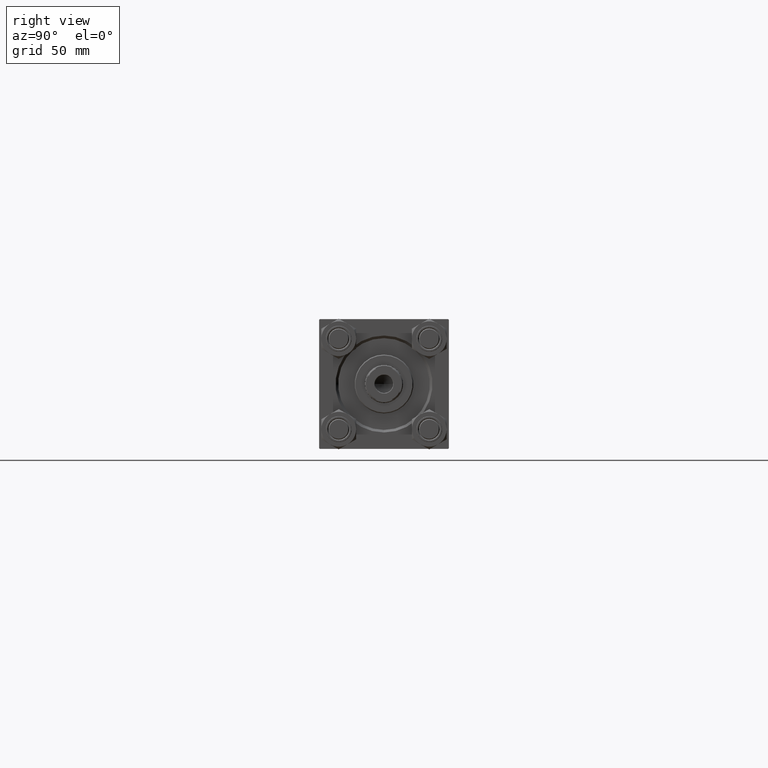
[diagram: clean part render]
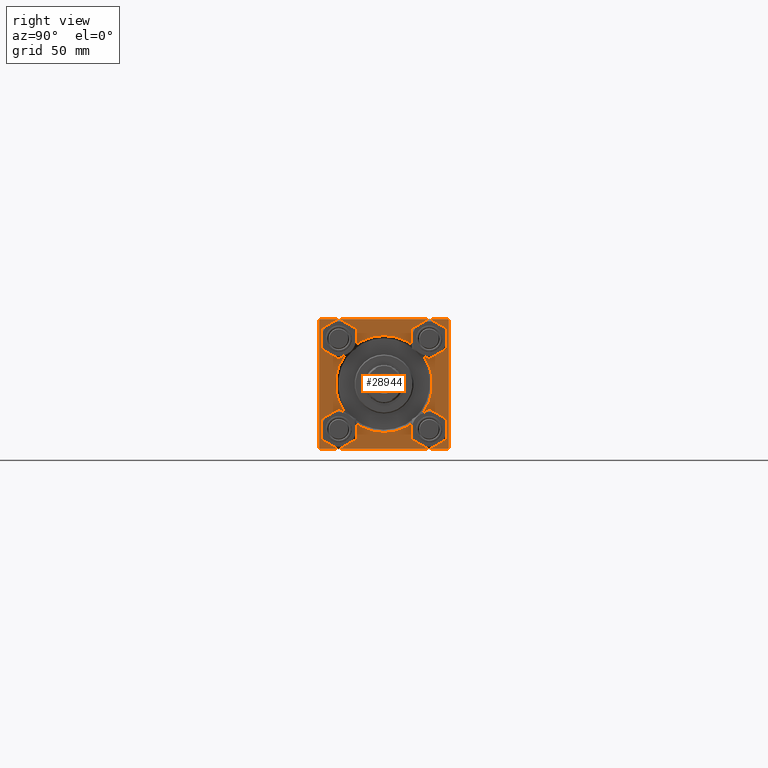
[diagram: same view with one face highlighted and labeled with its STEP entity id]
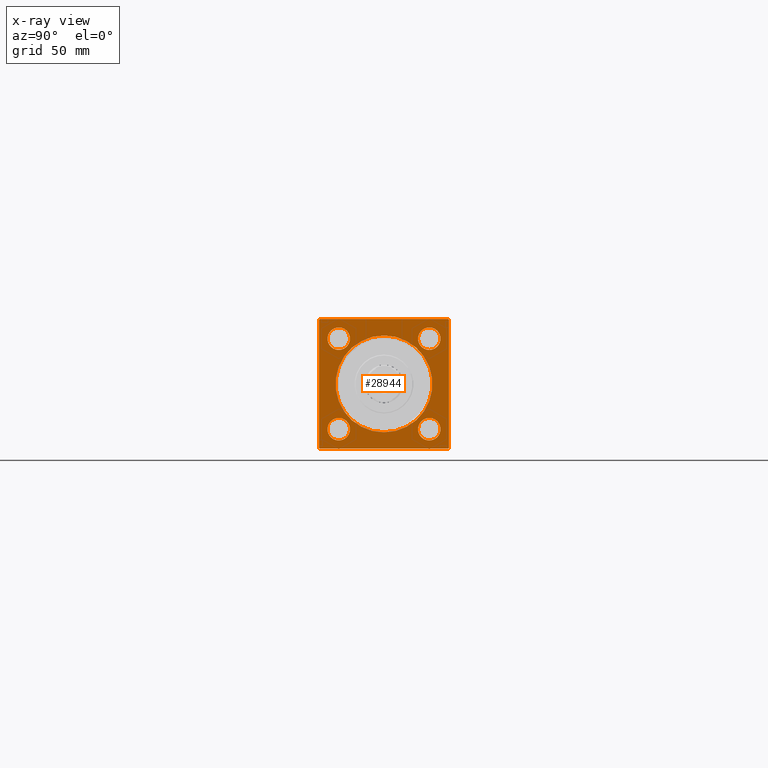
[diagram: x-ray of the same camera — body ghosted, the highlighted face saturated]
A machine part, right view. The second image highlights one B-rep face of the part: STEP entity #28944.
The next image is the same camera in x-ray: the body ghosted, the highlighted face saturated — about 0% of this face is hidden behind the body in this view.
In plain terms, the highlighted planar face has unit normal (-1, 0, 0).
Its self-contained STEP definition (entity closure, byte-faithful):
#395 = EDGE_CURVE ( 'NONE', #35150, #3053, #11239, .T. ) ;
#785 = CARTESIAN_POINT ( 'NONE',  ( 337.9999999999999432, -37.50000000000000711, -37.00000000000000711 ) ) ;
#971 = DIRECTION ( 'NONE',  ( -1.000000000000000000, -0.000000000000000000, 0.000000000000000000 ) ) ;
#1113 = FACE_OUTER_BOUND ( 'NONE', #42255, .T. ) ;
#1223 = ORIENTED_EDGE ( 'NONE', *, *, #19247, .T. ) ;
#1498 = AXIS2_PLACEMENT_3D ( 'NONE', #3431, #23285, #18760 ) ;
#1632 = VERTEX_POINT ( 'NONE', #37263 ) ;
#2069 = CARTESIAN_POINT ( 'NONE',  ( 337.9999999999999432, -26.14999999999999147, 26.15000000000000924 ) ) ;
#2175 = VERTEX_POINT ( 'NONE', #43338 ) ;
#2333 = CARTESIAN_POINT ( 'NONE',  ( 337.9999999999999432, -26.14999999999999147, -26.15000000000000924 ) ) ;
#2349 = ORIENTED_EDGE ( 'NONE', *, *, #37977, .T. ) ;
#2572 = AXIS2_PLACEMENT_3D ( 'NONE', #26548, #22770, #18987 ) ;
#2605 = DIRECTION ( 'NONE',  ( 0.000000000000000000, 0.000000000000000000, 1.000000000000000000 ) ) ;
#3053 = VERTEX_POINT ( 'NONE', #32508 ) ;
#3362 = CARTESIAN_POINT ( 'NONE',  ( 337.9999999999999432, 36.99999999999994316, -37.50000000000000000 ) ) ;
#3431 = CARTESIAN_POINT ( 'NONE',  ( 337.9999999999999432, 26.14999999999999858, -26.15000000000000213 ) ) ;
#4290 = CARTESIAN_POINT ( 'NONE',  ( 337.9999999999999432, 26.14999999999999858, 32.65000000000012648 ) ) ;
#4418 = VERTEX_POINT ( 'NONE', #10835 ) ;
#4836 = CARTESIAN_POINT ( 'NONE',  ( 337.9999999999999432, 26.14999999999999858, -19.64999999999988844 ) ) ;
#4893 = FACE_BOUND ( 'NONE', #20786, .T. ) ;
#5463 = ORIENTED_EDGE ( 'NONE', *, *, #395, .F. ) ;
#6791 = CIRCLE ( 'NONE', #48561, 6.500000000000057732 ) ;
#7045 = LINE ( 'NONE', #41229, #45733 ) ;
#7159 = LINE ( 'NONE', #41835, #30085 ) ;
#7407 = DIRECTION ( 'NONE',  ( 0.000000000000000000, -0.7071067811865474617, 0.7071067811865474617 ) ) ;
#7972 = DIRECTION ( 'NONE',  ( -0.000000000000000000, -0.7071067811865474617, -0.7071067811865474617 ) ) ;
#8265 = CIRCLE ( 'NONE', #15461, 28.00000000000013500 ) ;
#8423 = VERTEX_POINT ( 'NONE', #26265 ) ;
#8435 = FACE_BOUND ( 'NONE', #23462, .T. ) ;
#8733 = AXIS2_PLACEMENT_3D ( 'NONE', #44367, #37045, #2605 ) ;
#9155 = CARTESIAN_POINT ( 'NONE',  ( 337.9999999999999432, 0.000000000000000000, 0.000000000000000000 ) ) ;
#10048 = EDGE_CURVE ( 'NONE', #35150, #24673, #7045, .T. ) ;
#10343 = CARTESIAN_POINT ( 'NONE',  ( 337.9999999999999432, -36.99999999999988631, 37.49999999999997868 ) ) ;
#10685 = CIRCLE ( 'NONE', #29126, 6.500000000000113687 ) ;
#10835 = CARTESIAN_POINT ( 'NONE',  ( 337.9999999999999432, 0.000000000000000000, -28.00000000000013500 ) ) ;
#11239 = LINE ( 'NONE', #25810, #11854 ) ;
#11468 = DIRECTION ( 'NONE',  ( 0.000000000000000000, 0.000000000000000000, 1.000000000000000000 ) ) ;
#11516 = ORIENTED_EDGE ( 'NONE', *, *, #15321, .T. ) ;
#11538 = CARTESIAN_POINT ( 'NONE',  ( 337.9999999999999432, -26.14999999999999147, -32.65000000000012648 ) ) ;
#11854 = VECTOR ( 'NONE', #29334, 1000.000000000000000 ) ;
#12006 = DIRECTION ( 'NONE',  ( 0.000000000000000000, 0.000000000000000000, -1.000000000000000000 ) ) ;
#12146 = EDGE_LOOP ( 'NONE', ( #48812, #29863 ) ) ;
#12461 = DIRECTION ( 'NONE',  ( 0.000000000000000000, 0.000000000000000000, 1.000000000000000000 ) ) ;
#12783 = VERTEX_POINT ( 'NONE', #4290 ) ;
#12886 = ORIENTED_EDGE ( 'NONE', *, *, #47121, .T. ) ;
#12925 = FACE_BOUND ( 'NONE', #47344, .T. ) ;
#12932 = ORIENTED_EDGE ( 'NONE', *, *, #15675, .T. ) ;
#13030 = CARTESIAN_POINT ( 'NONE',  ( 337.9999999999999432, 0.000000000000000000, 0.000000000000000000 ) ) ;
#13179 = CARTESIAN_POINT ( 'NONE',  ( 337.9999999999999432, 37.50000000000000000, 37.49999999999999289 ) ) ;
#13762 = CIRCLE ( 'NONE', #41879, 6.500000000000113687 ) ;
#15321 = EDGE_CURVE ( 'NONE', #37296, #12783, #22607, .T. ) ;
#15461 = AXIS2_PLACEMENT_3D ( 'NONE', #13030, #971, #36393 ) ;
#15525 = CARTESIAN_POINT ( 'NONE',  ( 337.9999999999999432, 37.50000000000000000, 37.49999999999999289 ) ) ;
#15675 = EDGE_CURVE ( 'NONE', #32119, #18323, #13762, .T. ) ;
#15766 = CARTESIAN_POINT ( 'NONE',  ( 337.9999999999999432, 26.14999999999999858, -26.15000000000000213 ) ) ;
#15950 = ORIENTED_EDGE ( 'NONE', *, *, #46265, .F. ) ;
#15973 = DIRECTION ( 'NONE',  ( 0.000000000000000000, 0.000000000000000000, 1.000000000000000000 ) ) ;
#16006 = CARTESIAN_POINT ( 'NONE',  ( 337.9999999999999432, -37.50000000000000000, 36.99999999999986500 ) ) ;
#16839 = CARTESIAN_POINT ( 'NONE',  ( 337.9999999999999432, -37.50000000000000000, 37.49999999999997868 ) ) ;
#17805 = EDGE_CURVE ( 'NONE', #2175, #31039, #21703, .T. ) ;
#17836 = CIRCLE ( 'NONE', #2572, 28.00000000000013500 ) ;
#17838 = VERTEX_POINT ( 'NONE', #36045 ) ;
#18323 = VERTEX_POINT ( 'NONE', #4836 ) ;
#18760 = DIRECTION ( 'NONE',  ( 0.000000000000000000, 0.000000000000000000, 1.000000000000000000 ) ) ;
#18987 = DIRECTION ( 'NONE',  ( 0.000000000000000000, 0.000000000000000000, 1.000000000000000000 ) ) ;
#19247 = EDGE_CURVE ( 'NONE', #46620, #17838, #10685, .T. ) ;
#20114 = CARTESIAN_POINT ( 'NONE',  ( 337.9999999999999432, 26.14999999999999858, -32.65000000000011937 ) ) ;
#20217 = FACE_BOUND ( 'NONE', #12146, .T. ) ;
#20786 = EDGE_LOOP ( 'NONE', ( #1223, #27367 ) ) ;
#21253 = CARTESIAN_POINT ( 'NONE',  ( 337.9999999999999432, -36.99999999999995737, -37.50000000000000000 ) ) ;
#21400 = ORIENTED_EDGE ( 'NONE', *, *, #44685, .T. ) ;
#21586 = VERTEX_POINT ( 'NONE', #32433 ) ;
#21703 = LINE ( 'NONE', #13179, #24285 ) ;
#21929 = EDGE_CURVE ( 'NONE', #4418, #21586, #8265, .T. ) ;
#22607 = CIRCLE ( 'NONE', #29020, 6.500000000000113687 ) ;
#22770 = DIRECTION ( 'NONE',  ( -1.000000000000000000, -0.000000000000000000, 0.000000000000000000 ) ) ;
#23195 = CIRCLE ( 'NONE', #8733, 6.500000000000113687 ) ;
#23285 = DIRECTION ( 'NONE',  ( -1.000000000000000000, -0.000000000000000000, 0.000000000000000000 ) ) ;
#23462 = EDGE_LOOP ( 'NONE', ( #11516, #12886 ) ) ;
#23769 = VECTOR ( 'NONE', #43495, 1000.000000000000000 ) ;
#23804 = LINE ( 'NONE', #15525, #38414 ) ;
#24285 = VECTOR ( 'NONE', #32766, 1000.000000000000000 ) ;
#24673 = VERTEX_POINT ( 'NONE', #25030 ) ;
#25030 = CARTESIAN_POINT ( 'NONE',  ( 337.9999999999999432, 37.50000000000000000, -36.99999999999993605 ) ) ;
#25731 = ORIENTED_EDGE ( 'NONE', *, *, #41012, .T. ) ;
#25810 = CARTESIAN_POINT ( 'NONE',  ( 337.9999999999999432, 37.50000000000000000, -37.50000000000000000 ) ) ;
#25862 = CARTESIAN_POINT ( 'NONE',  ( 337.9999999999999432, -26.14999999999999147, 19.64999999999994884 ) ) ;
#26265 = CARTESIAN_POINT ( 'NONE',  ( 337.9999999999999432, -37.50000000000000000, 36.99999999999986500 ) ) ;
#26548 = CARTESIAN_POINT ( 'NONE',  ( 337.9999999999999432, 0.000000000000000000, 0.000000000000000000 ) ) ;
#26629 = ORIENTED_EDGE ( 'NONE', *, *, #17805, .T. ) ;
#27367 = ORIENTED_EDGE ( 'NONE', *, *, #38223, .T. ) ;
#27572 = ORIENTED_EDGE ( 'NONE', *, *, #46953, .T. ) ;
#27692 = CIRCLE ( 'NONE', #42109, 6.500000000000113687 ) ;
#27812 = LINE ( 'NONE', #16006, #38377 ) ;
#27903 = CARTESIAN_POINT ( 'NONE',  ( 337.9999999999999432, 26.14999999999999858, 26.15000000000000213 ) ) ;
#27915 = LINE ( 'NONE', #16839, #23769 ) ;
#28403 = DIRECTION ( 'NONE',  ( -1.000000000000000000, -0.000000000000000000, 0.000000000000000000 ) ) ;
#28727 = DIRECTION ( 'NONE',  ( -1.000000000000000000, -0.000000000000000000, 0.000000000000000000 ) ) ;
#28735 = EDGE_CURVE ( 'NONE', #21586, #4418, #17836, .T. ) ;
#28784 = CIRCLE ( 'NONE', #1498, 6.500000000000113687 ) ;
#28944 = ADVANCED_FACE ( 'NONE', ( #4893, #32028, #8435, #12925, #20217, #1113 ), #35072, .F. ) ;
#29020 = AXIS2_PLACEMENT_3D ( 'NONE', #27903, #28403, #35443 ) ;
#29126 = AXIS2_PLACEMENT_3D ( 'NONE', #49696, #42630, #12461 ) ;
#29293 = DIRECTION ( 'NONE',  ( 0.000000000000000000, 0.7071067811865867636, -0.7071067811865081598 ) ) ;
#29334 = DIRECTION ( 'NONE',  ( 0.000000000000000000, -1.000000000000000000, 0.000000000000000000 ) ) ;
#29863 = ORIENTED_EDGE ( 'NONE', *, *, #28735, .T. ) ;
#30085 = VECTOR ( 'NONE', #7407, 1000.000000000000114 ) ;
#31039 = VERTEX_POINT ( 'NONE', #10343 ) ;
#31336 = ORIENTED_EDGE ( 'NONE', *, *, #40251, .T. ) ;
#31785 = DIRECTION ( 'NONE',  ( -1.000000000000000000, -0.000000000000000000, 0.000000000000000000 ) ) ;
#32028 = FACE_BOUND ( 'NONE', #44246, .T. ) ;
#32119 = VERTEX_POINT ( 'NONE', #20114 ) ;
#32433 = CARTESIAN_POINT ( 'NONE',  ( 337.9999999999999432, 3.429011037612605842E-15, 28.00000000000013500 ) ) ;
#32508 = CARTESIAN_POINT ( 'NONE',  ( 337.9999999999999432, -36.99999999999995737, -37.50000000000000000 ) ) ;
#32753 = DIRECTION ( 'NONE',  ( 0.000000000000000000, 0.000000000000000000, 1.000000000000000000 ) ) ;
#32766 = DIRECTION ( 'NONE',  ( 0.000000000000000000, -1.000000000000000000, -1.850371707708594316E-16 ) ) ;
#33432 = DIRECTION ( 'NONE',  ( -0.000000000000000000, 0.7071067811865426878, 0.7071067811865524577 ) ) ;
#33609 = ORIENTED_EDGE ( 'NONE', *, *, #10048, .T. ) ;
#33650 = ORIENTED_EDGE ( 'NONE', *, *, #33991, .T. ) ;
#33924 = AXIS2_PLACEMENT_3D ( 'NONE', #9155, #31785, #15973 ) ;
#33991 = EDGE_CURVE ( 'NONE', #42716, #2175, #7159, .T. ) ;
#34116 = EDGE_CURVE ( 'NONE', #1632, #46479, #6791, .T. ) ;
#35026 = CARTESIAN_POINT ( 'NONE',  ( 337.9999999999999432, 26.14999999999999858, 19.64999999999988489 ) ) ;
#35072 = PLANE ( 'NONE',  #33924 ) ;
#35150 = VERTEX_POINT ( 'NONE', #3362 ) ;
#35443 = DIRECTION ( 'NONE',  ( 0.000000000000000000, 0.000000000000000000, 1.000000000000000000 ) ) ;
#36045 = CARTESIAN_POINT ( 'NONE',  ( 337.9999999999999432, -26.14999999999999147, -19.64999999999989555 ) ) ;
#36393 = DIRECTION ( 'NONE',  ( 0.000000000000000000, 0.000000000000000000, 1.000000000000000000 ) ) ;
#36581 = LINE ( 'NONE', #21253, #42937 ) ;
#37045 = DIRECTION ( 'NONE',  ( -1.000000000000000000, -0.000000000000000000, 0.000000000000000000 ) ) ;
#37263 = CARTESIAN_POINT ( 'NONE',  ( 337.9999999999999432, -26.14999999999999147, 32.65000000000007674 ) ) ;
#37296 = VERTEX_POINT ( 'NONE', #35026 ) ;
#37391 = CIRCLE ( 'NONE', #48627, 6.500000000000057732 ) ;
#37977 = EDGE_CURVE ( 'NONE', #48396, #3053, #36581, .T. ) ;
#38223 = EDGE_CURVE ( 'NONE', #17838, #46620, #27692, .T. ) ;
#38363 = DIRECTION ( 'NONE',  ( -1.000000000000000000, -0.000000000000000000, 0.000000000000000000 ) ) ;
#38377 = VECTOR ( 'NONE', #7972, 1000.000000000000114 ) ;
#38414 = VECTOR ( 'NONE', #12006, 1000.000000000000000 ) ;
#38832 = CARTESIAN_POINT ( 'NONE',  ( 337.9999999999999432, 37.50000000000000000, 36.99999999999993605 ) ) ;
#39388 = DIRECTION ( 'NONE',  ( -1.000000000000000000, -0.000000000000000000, 0.000000000000000000 ) ) ;
#40251 = EDGE_CURVE ( 'NONE', #46479, #1632, #37391, .T. ) ;
#41012 = EDGE_CURVE ( 'NONE', #8423, #48396, #27915, .T. ) ;
#41229 = CARTESIAN_POINT ( 'NONE',  ( 337.9999999999999432, 37.50000000000000000, -36.99999999999993605 ) ) ;
#41835 = CARTESIAN_POINT ( 'NONE',  ( 337.9999999999999432, 36.99999999999994316, 37.49999999999999289 ) ) ;
#41879 = AXIS2_PLACEMENT_3D ( 'NONE', #15766, #39388, #42664 ) ;
#42109 = AXIS2_PLACEMENT_3D ( 'NONE', #2333, #43590, #32753 ) ;
#42110 = ORIENTED_EDGE ( 'NONE', *, *, #34116, .T. ) ;
#42255 = EDGE_LOOP ( 'NONE', ( #25731, #2349, #5463, #33609, #15950, #33650, #26629, #21400 ) ) ;
#42378 = CARTESIAN_POINT ( 'NONE',  ( 337.9999999999999432, -26.14999999999999147, 26.15000000000000924 ) ) ;
#42630 = DIRECTION ( 'NONE',  ( -1.000000000000000000, -0.000000000000000000, 0.000000000000000000 ) ) ;
#42664 = DIRECTION ( 'NONE',  ( 0.000000000000000000, 0.000000000000000000, 1.000000000000000000 ) ) ;
#42716 = VERTEX_POINT ( 'NONE', #38832 ) ;
#42937 = VECTOR ( 'NONE', #29293, 1000.000000000000000 ) ;
#43338 = CARTESIAN_POINT ( 'NONE',  ( 337.9999999999999432, 36.99999999999994316, 37.49999999999999289 ) ) ;
#43495 = DIRECTION ( 'NONE',  ( 0.000000000000000000, -9.251858538542972814E-17, -1.000000000000000000 ) ) ;
#43590 = DIRECTION ( 'NONE',  ( -1.000000000000000000, -0.000000000000000000, 0.000000000000000000 ) ) ;
#44071 = DIRECTION ( 'NONE',  ( 0.000000000000000000, 0.000000000000000000, 1.000000000000000000 ) ) ;
#44246 = EDGE_LOOP ( 'NONE', ( #12932, #27572 ) ) ;
#44367 = CARTESIAN_POINT ( 'NONE',  ( 337.9999999999999432, 26.14999999999999858, 26.15000000000000213 ) ) ;
#44685 = EDGE_CURVE ( 'NONE', #31039, #8423, #27812, .T. ) ;
#45733 = VECTOR ( 'NONE', #33432, 1000.000000000000000 ) ;
#46265 = EDGE_CURVE ( 'NONE', #42716, #24673, #23804, .T. ) ;
#46479 = VERTEX_POINT ( 'NONE', #25862 ) ;
#46620 = VERTEX_POINT ( 'NONE', #11538 ) ;
#46953 = EDGE_CURVE ( 'NONE', #18323, #32119, #28784, .T. ) ;
#47121 = EDGE_CURVE ( 'NONE', #12783, #37296, #23195, .T. ) ;
#47344 = EDGE_LOOP ( 'NONE', ( #31336, #42110 ) ) ;
#48396 = VERTEX_POINT ( 'NONE', #785 ) ;
#48561 = AXIS2_PLACEMENT_3D ( 'NONE', #2069, #28727, #44071 ) ;
#48627 = AXIS2_PLACEMENT_3D ( 'NONE', #42378, #38363, #11468 ) ;
#48812 = ORIENTED_EDGE ( 'NONE', *, *, #21929, .T. ) ;
#49696 = CARTESIAN_POINT ( 'NONE',  ( 337.9999999999999432, -26.14999999999999147, -26.15000000000000924 ) ) ;